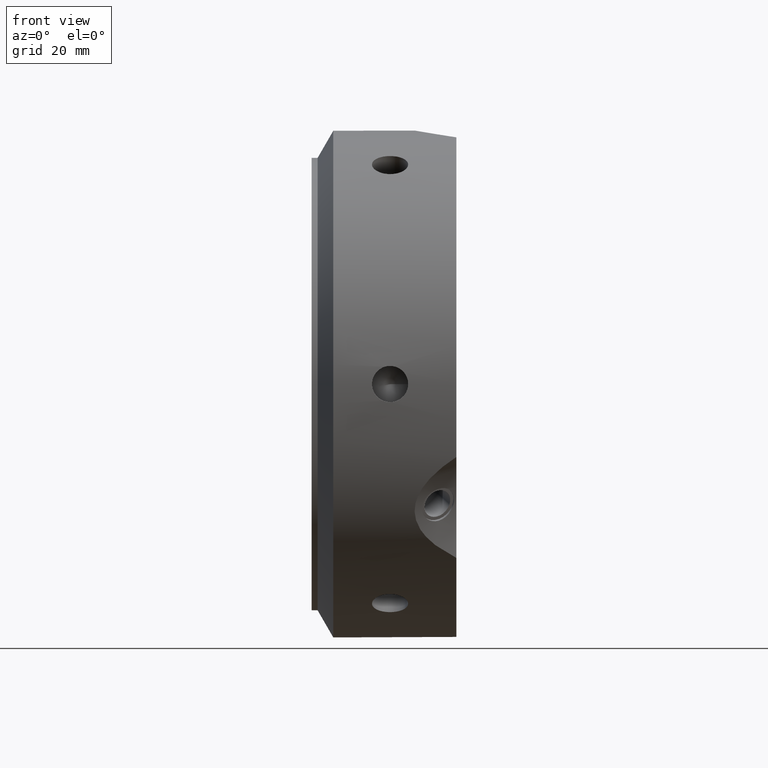
[diagram: clean part render]
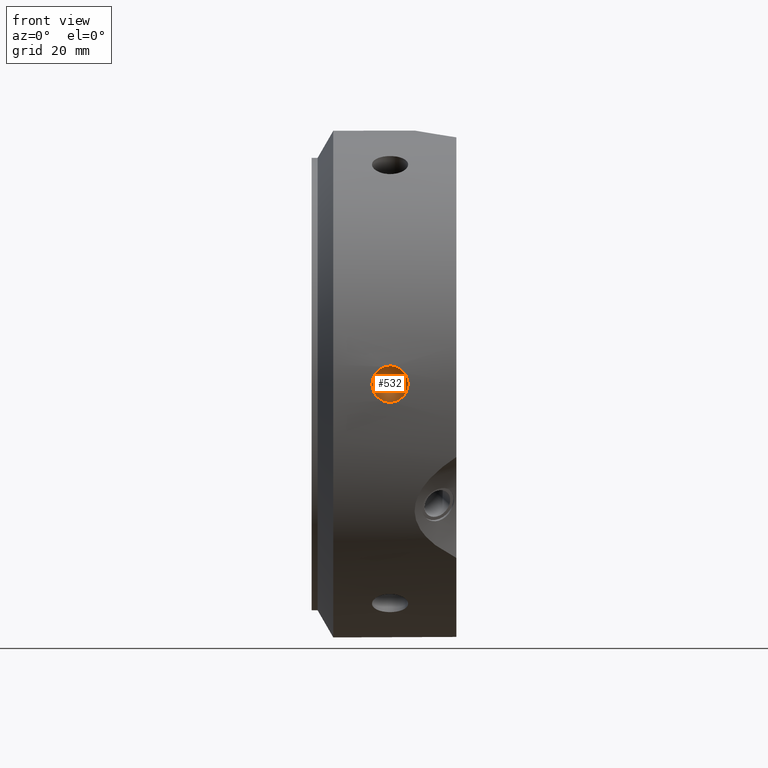
[diagram: same view with one face highlighted and labeled with its STEP entity id]
A machine part, front view. The second image highlights one B-rep face of the part: STEP entity #532.
In plain terms, the highlighted conical surface has half-angle 59 deg.
Its self-contained STEP definition (entity closure, byte-faithful):
#516=CARTESIAN_POINT('',(13.0,-35.098709071458671,1.332268E-014));
#517=DIRECTION('',(0.0,-1.0,2.775558E-016));
#518=DIRECTION('',(1.0,0.0,0.0));
#519=AXIS2_PLACEMENT_3D('',#516,#517,#518);
#520=CONICAL_SURFACE('',#519,1.5,58.999999999999993);
#521=CARTESIAN_POINT('',(16.0,-36.000000000000007,1.332268E-014));
#522=VERTEX_POINT('',#521);
#523=CARTESIAN_POINT('',(13.0,-36.000000000000007,1.332268E-014));
#524=DIRECTION('',(0.0,-1.0,0.0));
#525=DIRECTION('',(1.0,0.0,0.0));
#526=AXIS2_PLACEMENT_3D('',#523,#524,#525);
#527=CIRCLE('',#526,3.0);
#528=EDGE_CURVE('',#522,#522,#527,.T.);
#529=ORIENTED_EDGE('',*,*,#528,.T.);
#530=EDGE_LOOP('',(#529));
#531=FACE_OUTER_BOUND('',#530,.T.);
#532=ADVANCED_FACE('',(#531),#520,.F.);